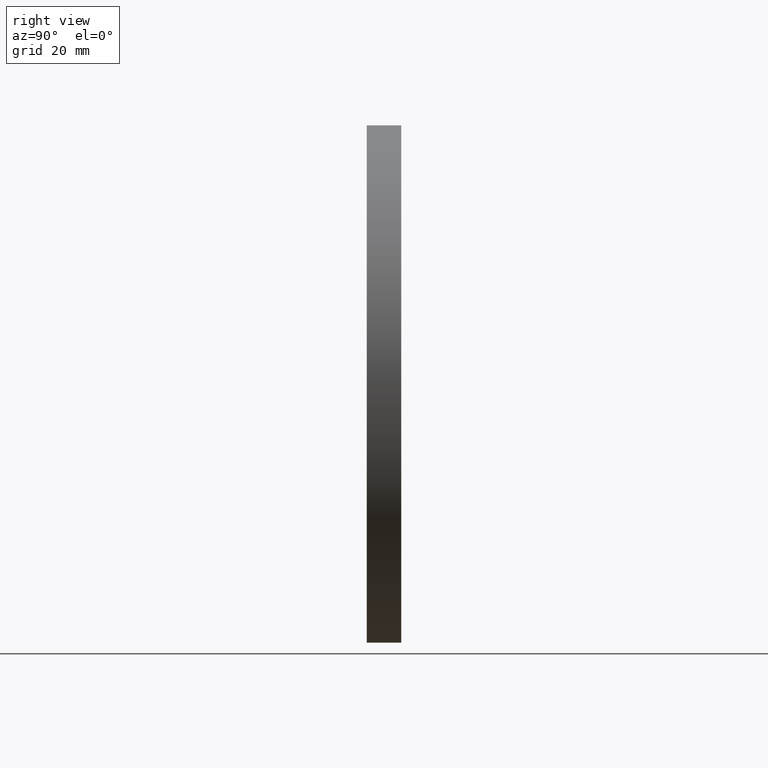
[diagram: clean part render]
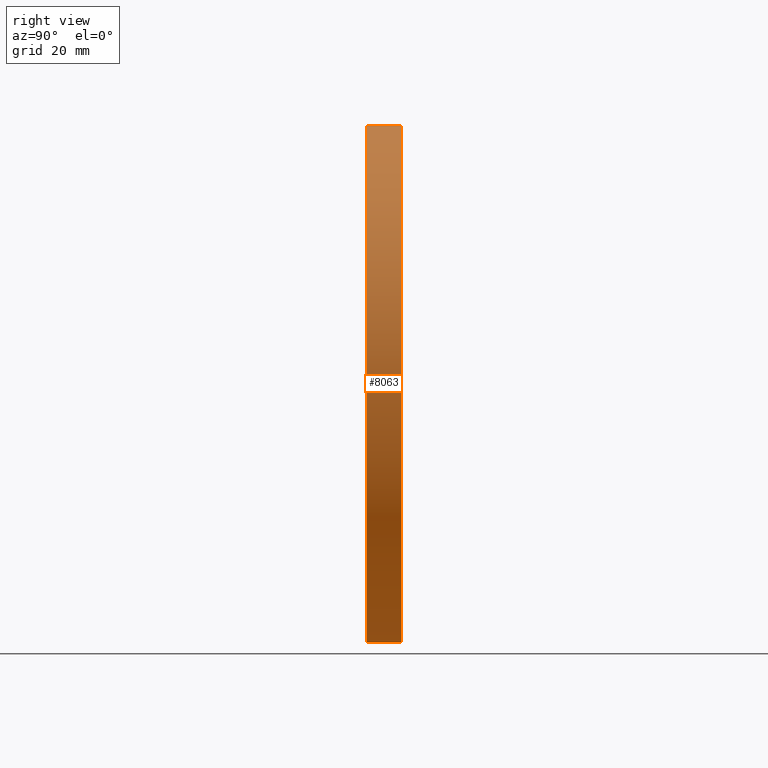
[diagram: same view with one face highlighted and labeled with its STEP entity id]
A machine part, right view. The second image highlights one B-rep face of the part: STEP entity #8063.
In plain terms, the highlighted cylindrical surface (partial cylindrical patch) has radius 60 mm, axis along (-0, -1, -0).
Its self-contained STEP definition (entity closure, byte-faithful):
#133 = CARTESIAN_POINT ( 'NONE',  ( 0.000000000000000000, 8.000000000000000000, 0.000000000000000000 ) ) ;
#815 = ORIENTED_EDGE ( 'NONE', *, *, #3327, .T. ) ;
#936 = EDGE_CURVE ( 'NONE', #4666, #10720, #11851, .T. ) ;
#1099 = EDGE_LOOP ( 'NONE', ( #3205, #815, #1315, #11697 ) ) ;
#1289 = EDGE_CURVE ( 'NONE', #4071, #10720, #9622, .T. ) ;
#1315 = ORIENTED_EDGE ( 'NONE', *, *, #936, .T. ) ;
#1372 = VECTOR ( 'NONE', #11557, 1000.000000000000000 ) ;
#1822 = AXIS2_PLACEMENT_3D ( 'NONE', #11811, #7621, #10829 ) ;
#2082 = CYLINDRICAL_SURFACE ( 'NONE', #2962, 60.00000000000000000 ) ;
#2501 = CIRCLE ( 'NONE', #1822, 60.00000000000000000 ) ;
#2962 = AXIS2_PLACEMENT_3D ( 'NONE', #133, #9282, #12518 ) ;
#3205 = ORIENTED_EDGE ( 'NONE', *, *, #13318, .F. ) ;
#3327 = EDGE_CURVE ( 'NONE', #7598, #4666, #5403, .T. ) ;
#4071 = VERTEX_POINT ( 'NONE', #5741 ) ;
#4182 = AXIS2_PLACEMENT_3D ( 'NONE', #12652, #7452, #7356 ) ;
#4666 = VERTEX_POINT ( 'NONE', #5940 ) ;
#5403 = LINE ( 'NONE', #6590, #6520 ) ;
#5741 = CARTESIAN_POINT ( 'NONE',  ( 0.000000000000000000, 8.000000000000000000, -60.00000000000000000 ) ) ;
#5940 = CARTESIAN_POINT ( 'NONE',  ( 7.347880794884118356E-15, 0.000000000000000000, 60.00000000000000000 ) ) ;
#6520 = VECTOR ( 'NONE', #10838, 1000.000000000000000 ) ;
#6590 = CARTESIAN_POINT ( 'NONE',  ( 7.347880794884118356E-15, 8.000000000000000000, 60.00000000000000000 ) ) ;
#7356 = DIRECTION ( 'NONE',  ( 0.000000000000000000, 0.000000000000000000, 1.000000000000000000 ) ) ;
#7370 = CARTESIAN_POINT ( 'NONE',  ( 7.347880794884118356E-15, 8.000000000000000000, 60.00000000000000000 ) ) ;
#7452 = DIRECTION ( 'NONE',  ( 0.000000000000000000, 1.000000000000000000, 0.000000000000000000 ) ) ;
#7598 = VERTEX_POINT ( 'NONE', #7370 ) ;
#7621 = DIRECTION ( 'NONE',  ( 0.000000000000000000, 1.000000000000000000, 0.000000000000000000 ) ) ;
#7916 = CARTESIAN_POINT ( 'NONE',  ( 0.000000000000000000, 0.000000000000000000, -60.00000000000000000 ) ) ;
#8063 = ADVANCED_FACE ( 'NONE', ( #8888 ), #2082, .T. ) ;
#8888 = FACE_OUTER_BOUND ( 'NONE', #1099, .T. ) ;
#9282 = DIRECTION ( 'NONE',  ( -0.000000000000000000, -1.000000000000000000, -0.000000000000000000 ) ) ;
#9599 = CARTESIAN_POINT ( 'NONE',  ( 0.000000000000000000, 8.000000000000000000, -60.00000000000000000 ) ) ;
#9622 = LINE ( 'NONE', #9599, #1372 ) ;
#10720 = VERTEX_POINT ( 'NONE', #7916 ) ;
#10829 = DIRECTION ( 'NONE',  ( 0.000000000000000000, 0.000000000000000000, 1.000000000000000000 ) ) ;
#10838 = DIRECTION ( 'NONE',  ( -0.000000000000000000, -1.000000000000000000, -0.000000000000000000 ) ) ;
#11557 = DIRECTION ( 'NONE',  ( -0.000000000000000000, -1.000000000000000000, -0.000000000000000000 ) ) ;
#11697 = ORIENTED_EDGE ( 'NONE', *, *, #1289, .F. ) ;
#11811 = CARTESIAN_POINT ( 'NONE',  ( 0.000000000000000000, 8.000000000000000000, 0.000000000000000000 ) ) ;
#11851 = CIRCLE ( 'NONE', #4182, 60.00000000000000000 ) ;
#12518 = DIRECTION ( 'NONE',  ( 0.000000000000000000, 0.000000000000000000, -1.000000000000000000 ) ) ;
#12652 = CARTESIAN_POINT ( 'NONE',  ( 0.000000000000000000, 0.000000000000000000, 0.000000000000000000 ) ) ;
#13318 = EDGE_CURVE ( 'NONE', #7598, #4071, #2501, .T. ) ;